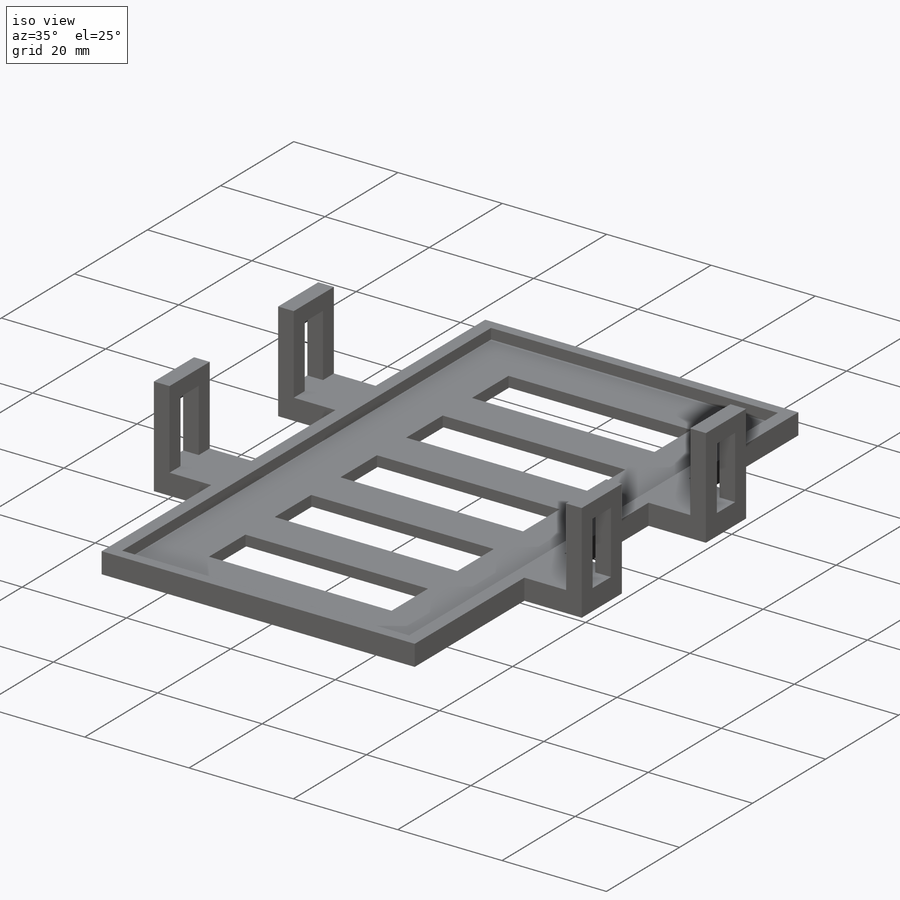
[diagram: iso view]
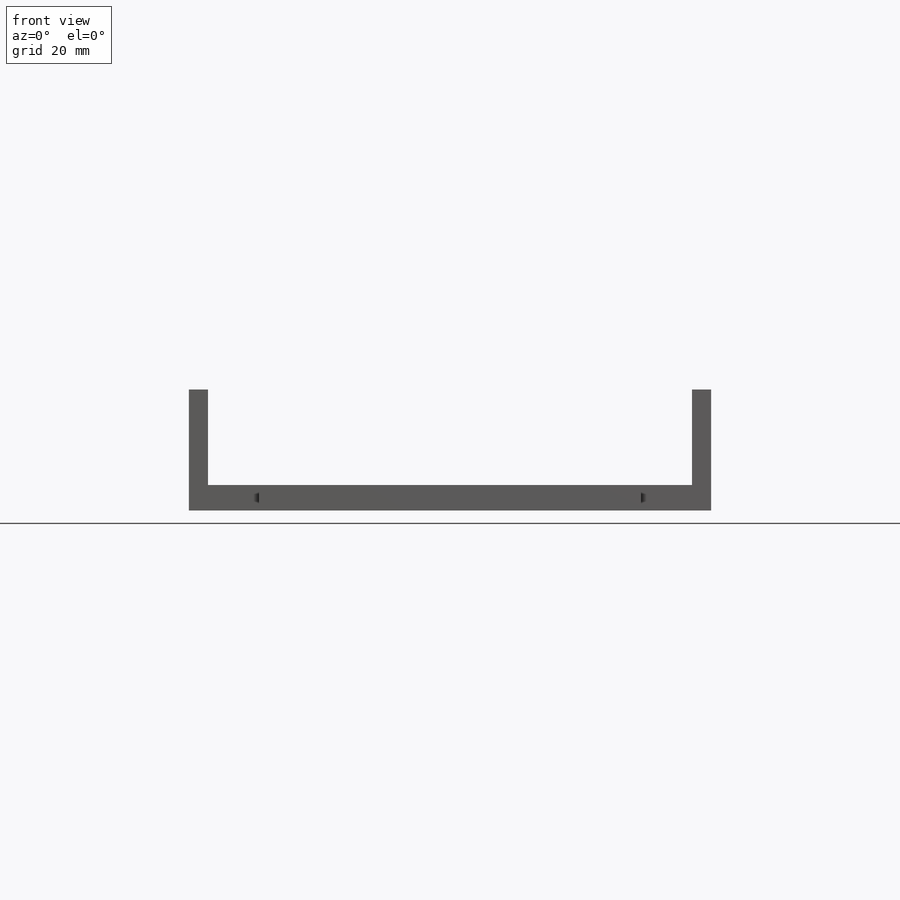
[diagram: front view]
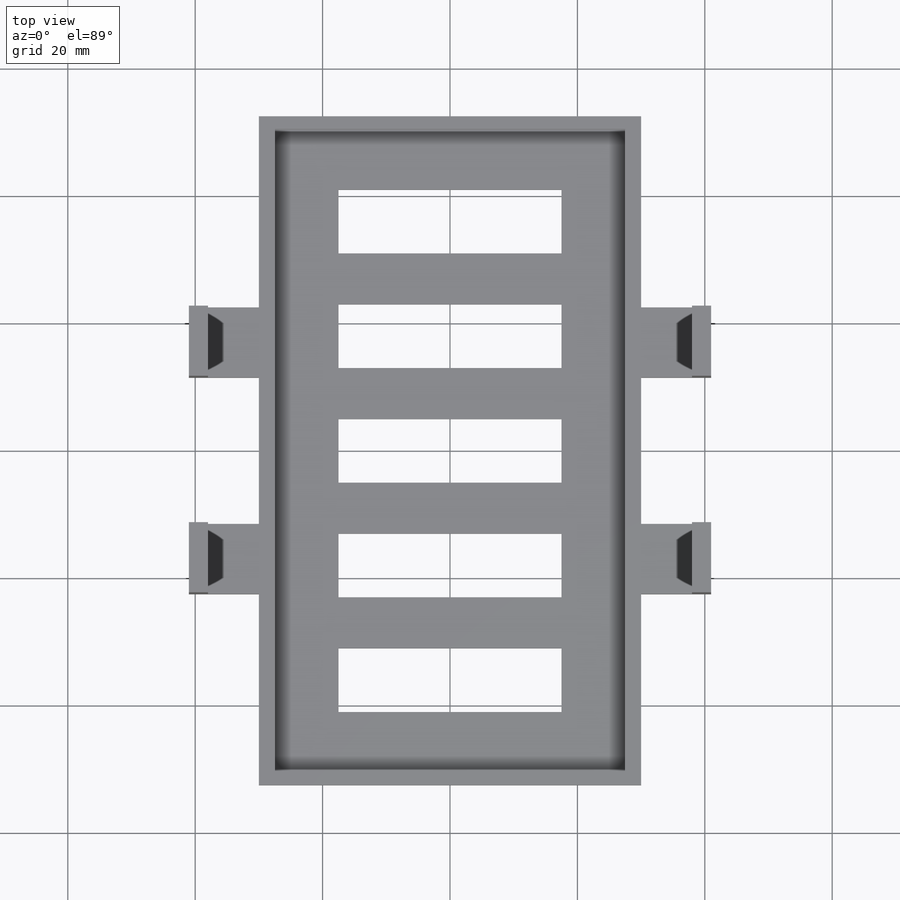
[diagram: top view]
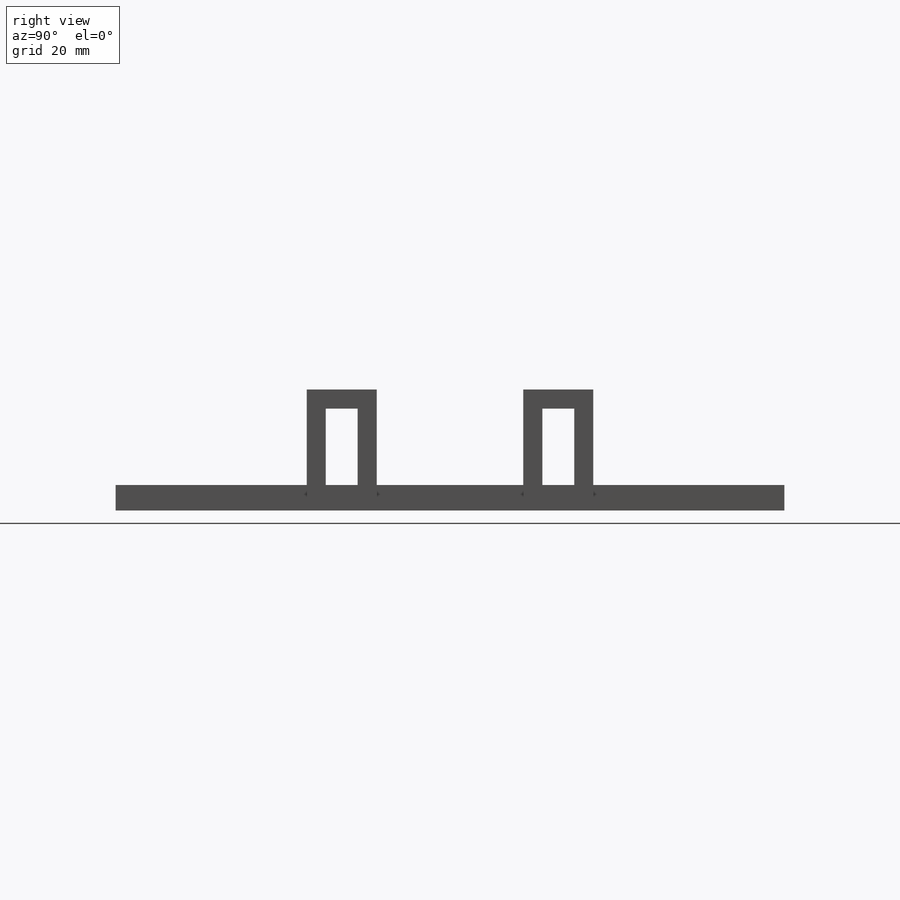
[diagram: right view]
SOLIDWORKS PART (.sldprt)
format: sldprt  version: not decoded by parser v0  size: 307,200 bytes
history: native  units: mm
features: sketch x6, cut_extrude x4, plane x3, extrude x2, material x1 (+9 scaffold rows collapsed)
feature tree (25):
  scaffold x9  (default folders/planes/origin — collapsed)
  material  "Material <sin especificar>"
  plane  "Alzado"
  plane  "Planta"
  plane  "Vista lateral"
  sketch  "Croquis1"  dims[c1.D6=3.0mm c1.D1=65.0mm c1.D2=60.0mm c1.D3=11.0mm c1.D4=5.0mm c1.D5=30.0mm c2.D6=7.5mm c2.D7=4.5mm c2.D4=2.0mm c2.D3=11.0mm c3.D4=11.0mm c3.D1=23.0mm]
  extrude  "Saliente-Extruir1"  Depth=4mm
  sketch  "Croquis2"  dims[c1.D1=60.0mm c1.D2=55.0mm c2.D1=2.0mm]
  cut_extrude  "Cortar-Extruir1"  Depth=2mm
  sketch  "Croquis12"  dims[D1=3.0mm]
  extrude  "Saliente-Extruir2"  Depth=15mm
  sketch  "Croquis13"  dims[D1=3.0mm D2=3.0mm]
  cut_extrude  "Cortar-Extruir8"  [1 undecoded]
  sketch  "Croquis14"  dims[D1=3.0mm]
  cut_extrude  "Cortar-Extruir9"  [1 undecoded]
  sketch  "Croquis15"  dims[D1=10.0mm D2=8.0mm D3=10.0mm]
  cut_extrude  "Cortar-Extruir10"  [1 undecoded]
decode coverage: 9 of 12 modeling features carry decoded parameters
note: 3 parameter values undecoded
summary: no parameter record found for 3 features
note: suppression state not decoded; provenance and decode notes live in map.json
